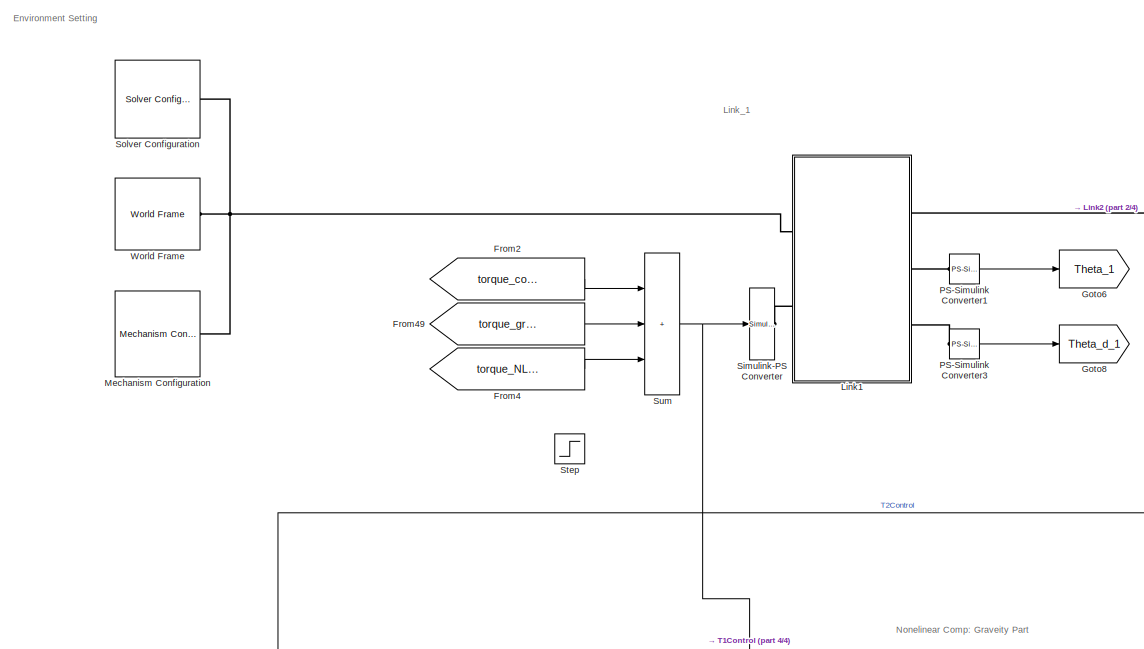
[diagram: root canvas - part 1/4, top left region]
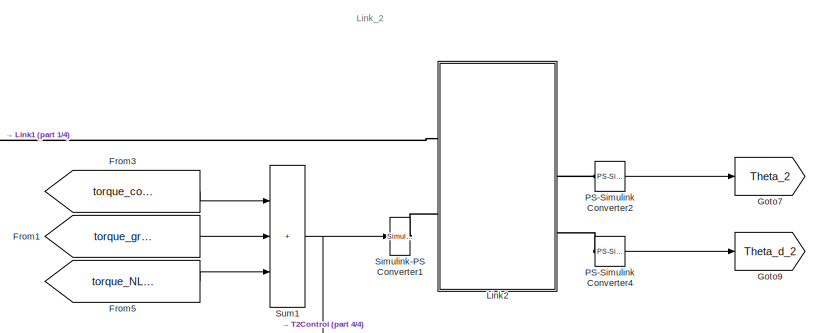
[diagram: root canvas - part 2/4, top right region]
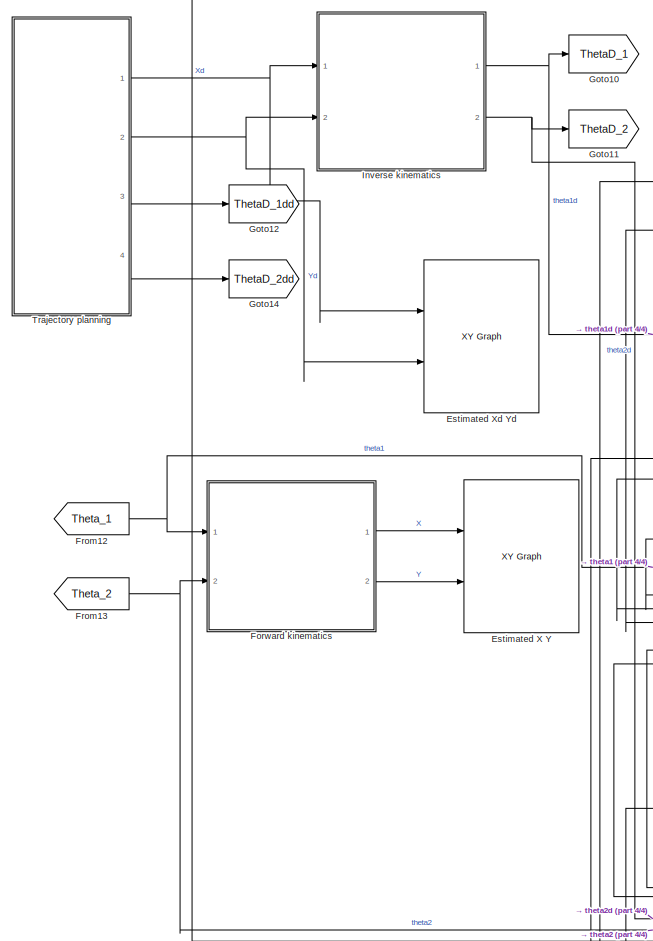
[diagram: root canvas - part 3/4, middle left region]
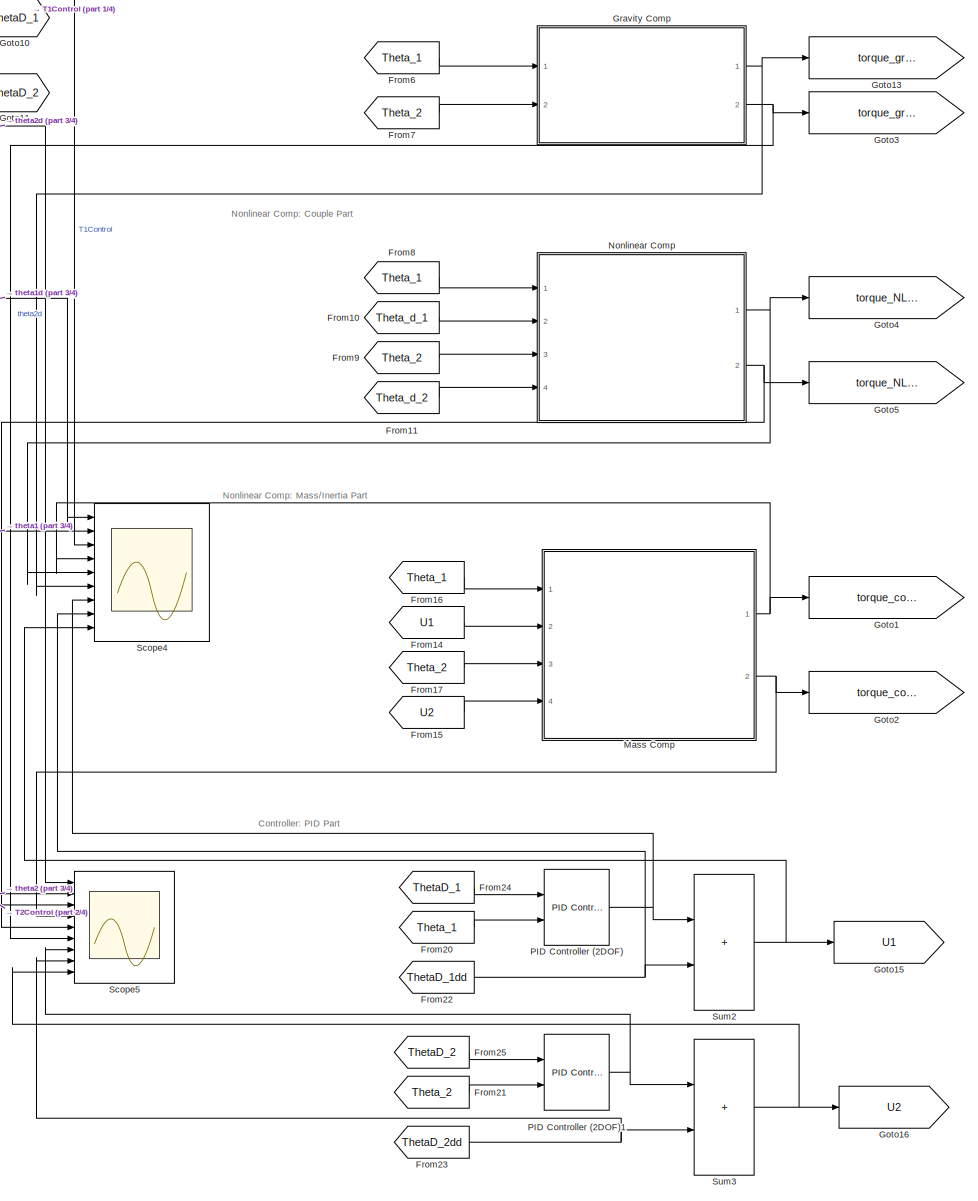
[diagram: root canvas - part 4/4, bottom center region]
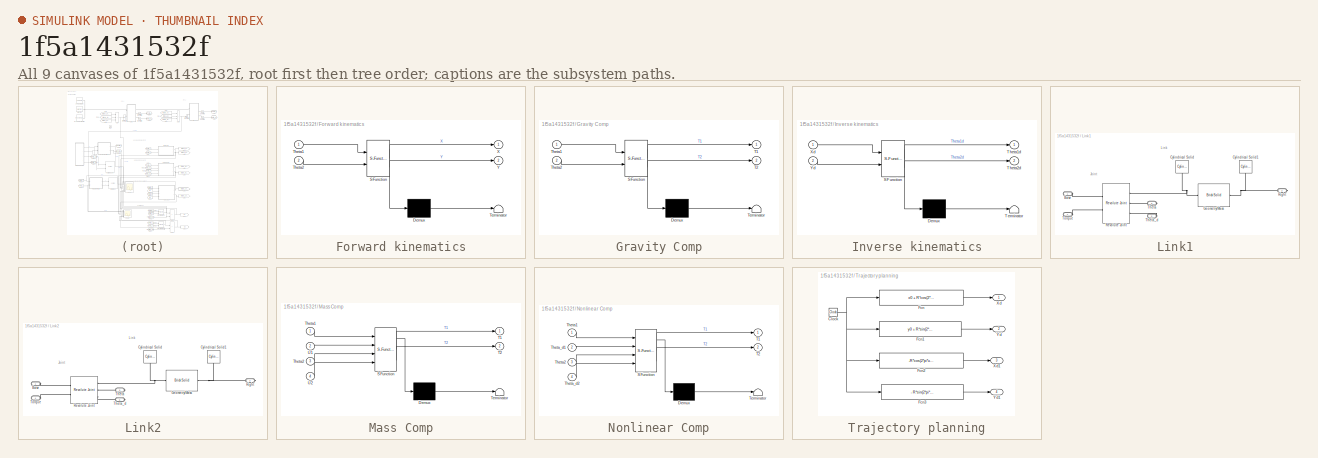
[diagram: thumbnail index - all 9 canvases of the model, root first then tree order]
MODEL slx_1f5a1431532f
KIND model
CONFIG AbsTol = auto
CONFIG EnableMultiTasking = off
CONFIG FixedStep = auto
CONFIG MaxStep = auto
CONFIG MinStep = auto
CONFIG RelTol = 1e-3
CONFIG SampleTimeConstraint = Unconstrained
CONFIG SolverName = VariableStepAuto
CONFIG StartTime = 0.0
CONFIG StopTime = 5
BLOCK [Reference] Estimated X Y  REF=simulink/Sinks/XY Graph
  Ports = [2]
  SourceBlock = simulink/Sinks/XY Graph
  SourceProductBaseCode = SL
  SourceType = XY scope.
BLOCK [Reference] Estimated Xd Yd  REF=simulink/Sinks/XY Graph
  Ports = [2]
  SourceBlock = simulink/Sinks/XY Graph
  SourceProductBaseCode = SL
  SourceType = XY scope.
BLOCK [SubSystem] Forward kinematics
  ErrorFcn = Stateflow.Translate.translate
  PermitHierarchicalResolution = ExplicitOnly
  Ports = [2, 2]
  RequestExecContextInheritance = off
  SFBlockType = MATLAB Function
  TreatAsAtomicUnit = on
BLOCK [Demux] Forward kinematics/ Demux 
  Outputs = 1
  Ports = [1, 1]
BLOCK [S-Function] Forward kinematics/ SFunction 
  EnableBusSupport = on
  FunctionName = sf_sfun
  PortCounts = [2 3]
  Ports = [2, 3]
  SFcnIsStateOwnerBlock = off
  SFunctionDeploymentMode = off
  Tag = Stateflow S-Function 3
BLOCK [Terminator] Forward kinematics/ Terminator 
BLOCK [Inport] Forward kinematics/Theta1
BLOCK [Inport] Forward kinematics/Theta2
  Port = 2
BLOCK [Outport] Forward kinematics/X
  VectorParamsAs1DForOutWhenUnconnected = off
BLOCK [Outport] Forward kinematics/Y
  Port = 2
  VectorParamsAs1DForOutWhenUnconnected = off
BLOCK [From] From1
  GotoTag = torque_gravity_comp2
BLOCK [From] From10
  GotoTag = Theta_d_1
  NameLocation = top
BLOCK [From] From11
  GotoTag = Theta_d_2
  NameLocation = top
BLOCK [From] From12
  GotoTag = Theta_1
BLOCK [From] From13
  GotoTag = Theta_2
BLOCK [From] From14
  GotoTag = U1
BLOCK [From] From15
  GotoTag = U2
BLOCK [From] From16
  GotoTag = Theta_1
BLOCK [From] From17
  GotoTag = Theta_2
BLOCK [From] From2
  GotoTag = torque_controller_1
BLOCK [From] From20
  GotoTag = Theta_1
BLOCK [From] From21
  GotoTag = Theta_2
BLOCK [From] From22
  GotoTag = ThetaD_1dd
BLOCK [From] From23
  GotoTag = ThetaD_2dd
BLOCK [From] From24
  GotoTag = ThetaD_1
BLOCK [From] From25
  GotoTag = ThetaD_2
BLOCK [From] From3
  GotoTag = torque_controller_2
BLOCK [From] From4
  GotoTag = torque_NL_comp1
BLOCK [From] From49
  GotoTag = torque_gravity_comp1
BLOCK [From] From5
  GotoTag = torque_NL_comp2
BLOCK [From] From6
  GotoTag = Theta_1
  NameLocation = top
BLOCK [From] From7
  GotoTag = Theta_2
  NameLocation = top
BLOCK [From] From8
  GotoTag = Theta_1
  NameLocation = top
BLOCK [From] From9
  GotoTag = Theta_2
  NameLocation = top
BLOCK [Goto] Goto1
  GotoTag = torque_controller_1
BLOCK [Goto] Goto10
  GotoTag = ThetaD_1
BLOCK [Goto] Goto11
  GotoTag = ThetaD_2
BLOCK [Goto] Goto12
  GotoTag = ThetaD_1dd
BLOCK [Goto] Goto13
  GotoTag = torque_gravity_comp1
  NameLocation = top
BLOCK [Goto] Goto14
  GotoTag = ThetaD_2dd
BLOCK [Goto] Goto15
  GotoTag = U1
BLOCK [Goto] Goto16
  GotoTag = U2
BLOCK [Goto] Goto2
  GotoTag = torque_controller_2
BLOCK [Goto] Goto3
  GotoTag = torque_gravity_comp2
  NameLocation = top
BLOCK [Goto] Goto4
  GotoTag = torque_NL_comp1
  NameLocation = top
BLOCK [Goto] Goto5
  GotoTag = torque_NL_comp2
  NameLocation = top
BLOCK [Goto] Goto6
  GotoTag = Theta_1
BLOCK [Goto] Goto7
  GotoTag = Theta_2
BLOCK [Goto] Goto8
  GotoTag = Theta_d_1
BLOCK [Goto] Goto9
  GotoTag = Theta_d_2
BLOCK [SubSystem] Gravity Comp
  ErrorFcn = Stateflow.Translate.translate
  NameLocation = top
  PermitHierarchicalResolution = ExplicitOnly
  Ports = [2, 2]
  RequestExecContextInheritance = off
  SFBlockType = MATLAB Function
  TreatAsAtomicUnit = on
BLOCK [Demux] Gravity Comp/ Demux 
  Outputs = 1
  Ports = [1, 1]
BLOCK [S-Function] Gravity Comp/ SFunction 
  EnableBusSupport = on
  FunctionName = sf_sfun
  PortCounts = [2 3]
  Ports = [2, 3]
  SFcnIsStateOwnerBlock = off
  SFunctionDeploymentMode = off
  Tag = Stateflow S-Function 2
BLOCK [Terminator] Gravity Comp/ Terminator 
BLOCK [Outport] Gravity Comp/T1
  VectorParamsAs1DForOutWhenUnconnected = off
BLOCK [Outport] Gravity Comp/T2
  Port = 2
BLOCK [Inport] Gravity Comp/Theta1
BLOCK [Inport] Gravity Comp/Theta2
  Port = 2
BLOCK [SubSystem] Inverse kinematics
  ErrorFcn = Stateflow.Translate.translate
  PermitHierarchicalResolution = ExplicitOnly
  Ports = [2, 2]
  RequestExecContextInheritance = off
  SFBlockType = MATLAB Function
  TreatAsAtomicUnit = on
BLOCK [Demux] Inverse kinematics/ Demux 
  Outputs = 1
  Ports = [1, 1]
BLOCK [S-Function] Inverse kinematics/ SFunction 
  EnableBusSupport = on
  FunctionName = sf_sfun
  PortCounts = [2 3]
  Ports = [2, 3]
  SFcnIsStateOwnerBlock = off
  SFunctionDeploymentMode = off
  Tag = Stateflow S-Function 4
BLOCK [Terminator] Inverse kinematics/ Terminator 
BLOCK [Outport] Inverse kinematics/Theta1d
  VectorParamsAs1DForOutWhenUnconnected = off
BLOCK [Outport] Inverse kinematics/Theta2d
  Port = 2
  VectorParamsAs1DForOutWhenUnconnected = off
BLOCK [Inport] Inverse kinematics/Xd
BLOCK [Inport] Inverse kinematics/Yd
  Port = 2
BLOCK [SubSystem] Link1
  Ports = [0, 0, 0, 0, 0, 2, 3]
  RequestExecContextInheritance = off
BLOCK [PMIOPort] Link1/Base
  Side = Left
BLOCK [Reference] Link1/Cylindrical Solid  REF=sm_lib/Body Elements/Cylindrical Solid
  NameLocation = left
  Ports = [0, 0, 0, 0, 0, 0, 1]
  SourceBlock = sm_lib/Body Elements/Cylindrical Solid
  SourceProductBaseCode = MS
  SourceType = Cylindrical Solid
BLOCK [Reference] Link1/Cylindrical Solid1  REF=sm_lib/Body Elements/Cylindrical Solid
  NameLocation = left
  Ports = [0, 0, 0, 0, 0, 0, 1]
  SourceBlock = sm_lib/Body Elements/Cylindrical Solid
  SourceProductBaseCode = MS
  SourceType = Cylindrical Solid
BLOCK [Reference] Link1/Geometry//Mass  REF=sm_lib/Body Elements/Brick Solid
  Ports = [0, 0, 0, 0, 0, 1, 1]
  SourceBlock = sm_lib/Body Elements/Brick Solid
  SourceProductBaseCode = MS
  SourceType = Brick Solid
BLOCK [Reference] Link1/Revolute Joint  REF=sm_lib/Joints/Revolute Joint
  Ports = [0, 0, 0, 0, 0, 2, 3]
  SourceBlock = sm_lib/Joints/Revolute Joint
  SourceProductBaseCode = MS
  SourceType = Revolute Joint
BLOCK [PMIOPort] Link1/Right
  Port = 2
  Side = Right
BLOCK [PMIOPort] Link1/Theta
  Port = 3
  Side = Right
BLOCK [PMIOPort] Link1/Theta_d
  Port = 5
  Side = Right
BLOCK [PMIOPort] Link1/Torque
  Port = 4
  Side = Left
BLOCK [SubSystem] Link2
  Ports = [0, 0, 0, 0, 0, 2, 3]
  RequestExecContextInheritance = off
BLOCK [PMIOPort] Link2/Base
  Side = Left
BLOCK [Reference] Link2/Cylindrical Solid  REF=sm_lib/Body Elements/Cylindrical Solid
  NameLocation = left
  Ports = [0, 0, 0, 0, 0, 0, 1]
  SourceBlock = sm_lib/Body Elements/Cylindrical Solid
  SourceProductBaseCode = MS
  SourceType = Cylindrical Solid
BLOCK [Reference] Link2/Cylindrical Solid1  REF=sm_lib/Body Elements/Cylindrical Solid
  NameLocation = left
  Ports = [0, 0, 0, 0, 0, 0, 1]
  SourceBlock = sm_lib/Body Elements/Cylindrical Solid
  SourceProductBaseCode = MS
  SourceType = Cylindrical Solid
BLOCK [Reference] Link2/Geometry//Mass  REF=sm_lib/Body Elements/Brick Solid
  Ports = [0, 0, 0, 0, 0, 1, 1]
  SourceBlock = sm_lib/Body Elements/Brick Solid
  SourceProductBaseCode = MS
  SourceType = Brick Solid
BLOCK [Reference] Link2/Revolute Joint  REF=sm_lib/Joints/Revolute Joint
  Ports = [0, 0, 0, 0, 0, 2, 3]
  SourceBlock = sm_lib/Joints/Revolute Joint
  SourceProductBaseCode = MS
  SourceType = Revolute Joint
BLOCK [PMIOPort] Link2/Right
  Port = 2
  Side = Right
BLOCK [PMIOPort] Link2/Theta
  Port = 3
  Side = Right
BLOCK [PMIOPort] Link2/Theta_d
  Port = 5
  Side = Right
BLOCK [PMIOPort] Link2/Torque
  Port = 4
  Side = Left
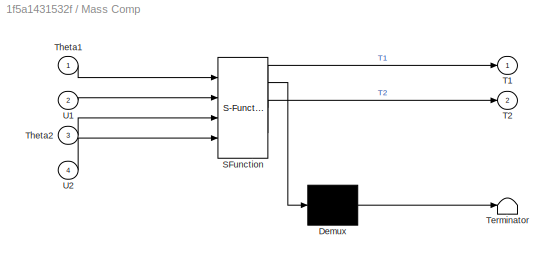
BLOCK [SubSystem] Mass Comp
  ErrorFcn = Stateflow.Translate.translate
  PermitHierarchicalResolution = ExplicitOnly
  Ports = [4, 2]
  RequestExecContextInheritance = off
  SFBlockType = MATLAB Function
  TreatAsAtomicUnit = on
BLOCK [Demux] Mass Comp/ Demux 
  Outputs = 1
  Ports = [1, 1]
BLOCK [S-Function] Mass Comp/ SFunction 
  EnableBusSupport = on
  FunctionName = sf_sfun
  PortCounts = [4 3]
  Ports = [4, 3]
  SFcnIsStateOwnerBlock = off
  SFunctionDeploymentMode = off
  Tag = Stateflow S-Function 5
BLOCK [Terminator] Mass Comp/ Terminator 
BLOCK [Outport] Mass Comp/T1
  VectorParamsAs1DForOutWhenUnconnected = off
BLOCK [Outport] Mass Comp/T2
  Port = 2
BLOCK [Inport] Mass Comp/Theta1
BLOCK [Inport] Mass Comp/Theta2
  Port = 3
BLOCK [Inport] Mass Comp/U1
  Port = 2
BLOCK [Inport] Mass Comp/U2
  Port = 4
BLOCK [Reference] Mechanism Configuration  REF=sm_lib/Utilities/Mechanism
Configuration
  Ports = [0, 0, 0, 0, 0, 0, 1]
  SourceBlock = sm_lib/Utilities/Mechanism\nConfiguration
  SourceProductBaseCode = MS
  SourceType = Mechanism\nConfiguration
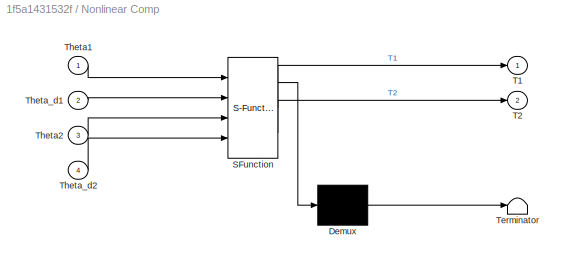
BLOCK [SubSystem] Nonlinear Comp
  ErrorFcn = Stateflow.Translate.translate
  NameLocation = top
  PermitHierarchicalResolution = ExplicitOnly
  Ports = [4, 2]
  RequestExecContextInheritance = off
  SFBlockType = MATLAB Function
  TreatAsAtomicUnit = on
BLOCK [Demux] Nonlinear Comp/ Demux 
  Outputs = 1
  Ports = [1, 1]
BLOCK [S-Function] Nonlinear Comp/ SFunction 
  EnableBusSupport = on
  FunctionName = sf_sfun
  PortCounts = [4 3]
  Ports = [4, 3]
  SFcnIsStateOwnerBlock = off
  SFunctionDeploymentMode = off
  Tag = Stateflow S-Function 1
BLOCK [Terminator] Nonlinear Comp/ Terminator 
BLOCK [Outport] Nonlinear Comp/T1
  VectorParamsAs1DForOutWhenUnconnected = off
BLOCK [Outport] Nonlinear Comp/T2
  Port = 2
BLOCK [Inport] Nonlinear Comp/Theta1
BLOCK [Inport] Nonlinear Comp/Theta2
  Port = 3
BLOCK [Inport] Nonlinear Comp/Theta_d1
  Port = 2
BLOCK [Inport] Nonlinear Comp/Theta_d2
  Port = 4
BLOCK [Reference] PID Controller (2DOF)  REF=pid_lib/PID Controller (2DOF)
  Ports = [2, 1]
  SourceBlock = pid_lib/PID Controller (2DOF)
  SourceProductBaseCode = SL
  SourceType = PID 2dof
BLOCK [Reference] PID Controller (2DOF)1  REF=pid_lib/PID Controller (2DOF)
  Ports = [2, 1]
  SourceBlock = pid_lib/PID Controller (2DOF)
  SourceProductBaseCode = SL
  SourceType = PID 2dof
BLOCK [Reference] PS-Simulink Converter1  REF=nesl_utility/PS-Simulink
Converter
  Ports = [0, 1, 0, 0, 0, 1]
  SourceBlock = nesl_utility/PS-Simulink\nConverter
  SourceProductBaseCode = SS
  SourceType = PS-Simulink\nConverter
BLOCK [Reference] PS-Simulink Converter2  REF=nesl_utility/PS-Simulink
Converter
  Ports = [0, 1, 0, 0, 0, 1]
  SourceBlock = nesl_utility/PS-Simulink\nConverter
  SourceProductBaseCode = SS
  SourceType = PS-Simulink\nConverter
BLOCK [Reference] PS-Simulink Converter3  REF=nesl_utility/PS-Simulink
Converter
  Ports = [0, 1, 0, 0, 0, 1]
  SourceBlock = nesl_utility/PS-Simulink\nConverter
  SourceProductBaseCode = SS
  SourceType = PS-Simulink\nConverter
BLOCK [Reference] PS-Simulink Converter4  REF=nesl_utility/PS-Simulink
Converter
  Ports = [0, 1, 0, 0, 0, 1]
  SourceBlock = nesl_utility/PS-Simulink\nConverter
  SourceProductBaseCode = SS
  SourceType = PS-Simulink\nConverter
BLOCK [Scope] Scope4
  Floating = off
  NumInputPorts = 9
  Ports = [9]
  ScopeSpecificationString = Simulink.scopes.TimeScopeBlockCfg('CurrentConfiguration', extmgr.ConfigurationSet(extmgr.Configuration('Core','General UI',true),extmgr.Configuration('Core','Source UI',true),extmgr.Configuration('Sources','WiredSimulink',true,'DataLoggingVariableName','ScopeData3'),extmgr.Configuration('Visuals','Time Domain',true,'SerializedDisplays',{struct('MinYLimReal','-2.28686','MaxYLimReal','4.91298','YLab...<+1798ch>
BLOCK [Scope] Scope5
  Floating = off
  NumInputPorts = 9
  Ports = [9]
  ScopeSpecificationString = Simulink.scopes.TimeScopeBlockCfg('CurrentConfiguration', extmgr.ConfigurationSet(extmgr.Configuration('Core','General UI',true),extmgr.Configuration('Core','Source UI',true),extmgr.Configuration('Sources','WiredSimulink',true,'DataLoggingVariableName','ScopeData4'),extmgr.Configuration('Visuals','Time Domain',true,'SerializedDisplays',{struct('MinYLimReal','-1.32507','MaxYLimReal','4.49255','YLab...<+1778ch>
BLOCK [Reference] Simulink-PS Converter  REF=nesl_utility/Simulink-PS
Converter
  Ports = [1, 0, 0, 0, 0, 0, 1]
  SourceBlock = nesl_utility/Simulink-PS\nConverter
  SourceProductBaseCode = SS
  SourceType = Simulink-PS\nConverter
BLOCK [Reference] Simulink-PS Converter1  REF=nesl_utility/Simulink-PS
Converter
  Ports = [1, 0, 0, 0, 0, 0, 1]
  SourceBlock = nesl_utility/Simulink-PS\nConverter
  SourceProductBaseCode = SS
  SourceType = Simulink-PS\nConverter
BLOCK [Reference] Solver Configuration  REF=nesl_utility/Solver
Configuration
  Ports = [0, 0, 0, 0, 0, 0, 1]
  SourceBlock = nesl_utility/Solver\nConfiguration
  SourceProductBaseCode = SS
  SourceType = Solver\nConfiguration
BLOCK [Step] Step
  After = 0.1
  SampleTime = 0
BLOCK [Sum] Sum
  IconShape = rectangular
  Inputs = +++
  Ports = [3, 1]
BLOCK [Sum] Sum1
  IconShape = rectangular
  Inputs = +++
  Ports = [3, 1]
BLOCK [Sum] Sum2
  IconShape = rectangular
  Ports = [2, 1]
BLOCK [Sum] Sum3
  IconShape = rectangular
  Ports = [2, 1]
BLOCK [SubSystem] Trajectory planning
  Ports = [0, 4]
  RequestExecContextInheritance = off
BLOCK [Clock] Trajectory planning/Clock
BLOCK [Fcn] Trajectory planning/Fcn
  Expr = x0 + R*cos(2*pi*u/T)
BLOCK [Fcn] Trajectory planning/Fcn1
  Expr = y0 + R*sin(2*pi*u/T )
BLOCK [Fcn] Trajectory planning/Fcn2
  Expr = -R*cos(2*pi*u/T)*(2*pi/T)^2
BLOCK [Fcn] Trajectory planning/Fcn3
  Expr = - R*sin(2*pi*u/T )*(2*pi/T)^2
BLOCK [Outport] Trajectory planning/Xd
  VectorParamsAs1DForOutWhenUnconnected = off
BLOCK [Outport] Trajectory planning/Xd1
  Port = 3
  VectorParamsAs1DForOutWhenUnconnected = off
BLOCK [Outport] Trajectory planning/Yd
  Port = 2
  VectorParamsAs1DForOutWhenUnconnected = off
BLOCK [Outport] Trajectory planning/Yd1
  Port = 4
  VectorParamsAs1DForOutWhenUnconnected = off
BLOCK [Reference] World Frame  REF=sm_lib/Frames and
Transforms/World Frame
  Ports = [0, 0, 0, 0, 0, 0, 1]
  SourceBlock = sm_lib/Frames and\nTransforms/World Frame
  SourceProductBaseCode = MS
  SourceType = World Frame
ANNOTATION (root): Controller: PID Part
ANNOTATION (root): Environment Setting
ANNOTATION (root): Link_1
ANNOTATION (root): Link_2
ANNOTATION (root): Nonelinear Comp: Graveity Part
ANNOTATION (root): Nonlinear Comp: Couple Part
ANNOTATION (root): Nonlinear Comp: Mass/Inertia Part
ANNOTATION Link1: Joint
ANNOTATION Link1: Link
ANNOTATION Link2: Joint
ANNOTATION Link2: Link
LINE Forward kinematics:1 -> Estimated X Y:1
LINE Forward kinematics:2 -> Estimated X Y:2
LINE From10:1 -> Nonlinear Comp:2
LINE From11:1 -> Nonlinear Comp:4
NET From12:1 -> Forward kinematics:1, Scope4:2
NET From13:1 -> Forward kinematics:2, Scope5:2
LINE From14:1 -> Mass Comp:2
LINE From15:1 -> Mass Comp:4
LINE From16:1 -> Mass Comp:1
LINE From17:1 -> Mass Comp:3
LINE From1:1 -> Sum1:2
LINE From20:1 -> PID Controller (2DOF):2
LINE From21:1 -> PID Controller (2DOF)1:2
NET From22:1 -> Scope4:8, Sum2:2
NET From23:1 -> Scope5:8, Sum3:2
LINE From24:1 -> PID Controller (2DOF):1
LINE From25:1 -> PID Controller (2DOF)1:1
LINE From2:1 -> Sum:1
LINE From3:1 -> Sum1:1
LINE From49:1 -> Sum:2
LINE From4:1 -> Sum:3
LINE From5:1 -> Sum1:3
LINE From6:1 -> Gravity Comp:1
LINE From7:1 -> Gravity Comp:2
LINE From8:1 -> Nonlinear Comp:1
LINE From9:1 -> Nonlinear Comp:3
NET Gravity Comp:1 -> Goto13:1, Scope4:6
NET Gravity Comp:2 -> Goto3:1, Scope5:6
NET Inverse kinematics:1 -> Goto10:1, Scope4:1
NET Inverse kinematics:2 -> Goto11:1, Scope5:1
NET Mass Comp:1 -> Goto1:1, Scope4:4
NET Mass Comp:2 -> Goto2:1, Scope5:4
NET Nonlinear Comp:1 -> Goto4:1, Scope4:5
NET Nonlinear Comp:2 -> Goto5:1, Scope5:5
NET PID Controller (2DOF)1:1 -> Scope5:7, Sum3:1
NET PID Controller (2DOF):1 -> Scope4:7, Sum2:1
LINE PS-Simulink Converter1:1 -> Goto6:1
LINE PS-Simulink Converter2:1 -> Goto7:1
LINE PS-Simulink Converter3:1 -> Goto8:1
LINE PS-Simulink Converter4:1 -> Goto9:1
NET Sum1:1 -> Scope5:3, Simulink-PS Converter1:1
NET Sum2:1 -> Goto15:1, Scope4:9
NET Sum3:1 -> Goto16:1, Scope5:9
NET Sum:1 -> Scope4:3, Simulink-PS Converter:1
NET Trajectory planning/Clock:1 -> Trajectory planning/Fcn1:1, Trajectory planning/Fcn2:1, Trajectory planning/Fcn3:1, Trajectory planning/Fcn:1
LINE Trajectory planning/Fcn1:1 -> Trajectory planning/Yd:1
LINE Trajectory planning/Fcn2:1 -> Trajectory planning/Xd1:1
LINE Trajectory planning/Fcn3:1 -> Trajectory planning/Yd1:1
LINE Trajectory planning/Fcn:1 -> Trajectory planning/Xd:1
NET Trajectory planning:1 -> Estimated Xd Yd:1, Inverse kinematics:1
NET Trajectory planning:2 -> Estimated Xd Yd:2, Inverse kinematics:2
LINE Trajectory planning:3 -> Goto12:1
LINE Trajectory planning:4 -> Goto14:1
PLINE Link1/Base:RConn1 -- Link1/Revolute Joint:LConn1
PNET net1: Link1/Cylindrical Solid1:RConn1 -- Link1/Geometry//Mass:RConn1 -- Link1/Right:RConn1
PNET net2: Link1/Cylindrical Solid:RConn1 -- Link1/Geometry//Mass:LConn1 -- Link1/Revolute Joint:RConn1
PLINE Link1/Revolute Joint:LConn2 -- Link1/Torque:RConn1
PLINE Link1/Revolute Joint:RConn2 -- Link1/Theta:RConn1
PLINE Link1/Revolute Joint:RConn3 -- Link1/Theta_d:RConn1
PNET net3: Link1:LConn1 -- Mechanism Configuration:RConn1 -- Solver Configuration:RConn1 -- World Frame:RConn1
PLINE Link1:LConn2 -- Simulink-PS Converter:RConn1
PLINE Link1:RConn1 -- Link2:LConn1
PLINE Link1:RConn2 -- PS-Simulink Converter1:LConn1
PLINE Link1:RConn3 -- PS-Simulink Converter3:LConn1
PLINE Link2/Base:RConn1 -- Link2/Revolute Joint:LConn1
PNET net4: Link2/Cylindrical Solid1:RConn1 -- Link2/Geometry//Mass:RConn1 -- Link2/Right:RConn1
PNET net5: Link2/Cylindrical Solid:RConn1 -- Link2/Geometry//Mass:LConn1 -- Link2/Revolute Joint:RConn1
PLINE Link2/Revolute Joint:LConn2 -- Link2/Torque:RConn1
PLINE Link2/Revolute Joint:RConn2 -- Link2/Theta:RConn1
PLINE Link2/Revolute Joint:RConn3 -- Link2/Theta_d:RConn1
PLINE Link2:LConn2 -- Simulink-PS Converter1:RConn1
PLINE Link2:RConn2 -- PS-Simulink Converter2:LConn1
PLINE Link2:RConn3 -- PS-Simulink Converter4:LConn1
note: NET lines group one-source signal fan-out (src -> all destinations, sorted); 1:1 wires keep LINE; PNET lines group multi-terminal physical nets as a canonical sorted terminal list (undirected conserving connections); 2-terminal nets keep the pairwise PLINE form
CHART Nonlinear Comp states=1 transitions=1
  STATE_LABEL 'eML_blk_kernel()'
  STATE_LABEL 'SCRIPT:\nfunction [T1,T2] = NLComp(Theta1, Theta_d1,Theta2, Theta_d2)\n\ng = 9.80665;\n\nm1 = 1.0;\nL1 = 0.25;\n\nm2 = 1.0;\nL2 = 0.25;\n\n\n% t没有用到，在这里仅仅是用于作为参数输入，没有实际作用，赋值为 0\nt=0;\n\nT=getC(t,L1,L2,m2,Theta1,Theta2,Theta_d1,Theta_d2);\nT1=T(1);\nT2=T(2);\nend'
CHART Gravity Comp states=1 transitions=1
  STATE_LABEL 'eML_blk_kernel()'
  STATE_LABEL 'SCRIPT:\nfunction [T1,T2] = GravityComp(Theta1, Theta2)\n\ng = 9.80665;\nm1 = 1.0;\nL1 = 0.25;\n\nm2 = 1.0;\nL2 = 0.25;\n\n% t没有用到，在这里仅仅是用于作为参数输入，没有实际作用，赋值为 0\nt=0;\n\nT=getG(t,g,L1,L2,m1,m2,Theta1,Theta2);\nT1=T(1);\nT2=T(2);\n\nend\n'
CHART Forward kinematics states=1 transitions=1
  STATE_LABEL 'eML_blk_kernel()'
  STATE_LABEL 'SCRIPT:\nfunction [X, Y] = Forwardkinematics(Theta1,Theta2)\n% \nl1 = 0.25; \nl2 = 0.25;\n\n% T10 = [cos(Theta1), -sin(Theta1), 0, l1*cos(Theta1);\n%        sin(Theta1), cos(Theta1),  0, l1*sin(Theta1);\n%        0,          0,             1,      0;\n%        0,          0,             0,       1];\n% \n% T21 = [cos(Theta2), -sin(Theta2), 0, l2*cos(Theta2);\n%        sin(Theta2), cos(Theta2),  0, l2*sin(Thet...<+246ch>'
CHART Inverse kinematics states=1 transitions=1
  STATE_LABEL 'eML_blk_kernel()'
  STATE_LABEL 'SCRIPT:\nfunction [Theta1d,Theta2d] = InverseKinematics(Xd,Yd)\n\nl1 = 0.25;\nl2 = 0.25;\n\nTheta2d = acos((Xd^2 + Yd^2 -l1^2 - l2^2)/(2*l1*l2));\nBeta = atan(l2*sin(Theta2d)/(l1+l2*cos(Theta2d)));\nTheta1d = atan(Yd/Xd) - Beta; \n\n\n\n\n\n\n\n\n'
CHART Mass Comp states=1 transitions=1
  STATE_LABEL 'eML_blk_kernel()'
  STATE_LABEL 'SCRIPT:\nfunction [T1,T2] = GravityComp(Theta1,U1, Theta2,U2)\n\nm1 = 1.0;\nL1 = 0.25;\n\nm2 = 1.0;\nL2 = 0.25;\n\n% t没有用到，在这里仅仅是用于作为参数输入，没有实际作用，赋值为 0\nt=0;\n\n% 通过符号推导得到的 H 参数\nH=getH(t,L1,L2,m1,m2,Theta1,Theta2);\n\nT=H*[U1;U2];\nT1=T(1);\nT2=T(2);\nend\n'
CHART  states=0 transitions=0
CHART  states=0 transitions=0
CHART  states=0 transitions=0
CHART  states=0 transitions=0
CHART  states=0 transitions=0
